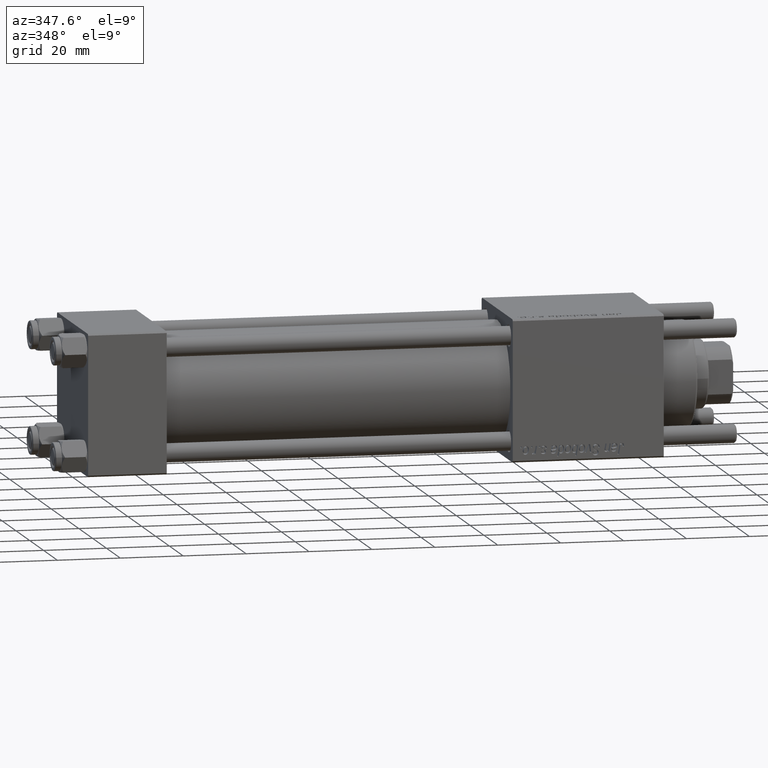
[diagram: clean part render]
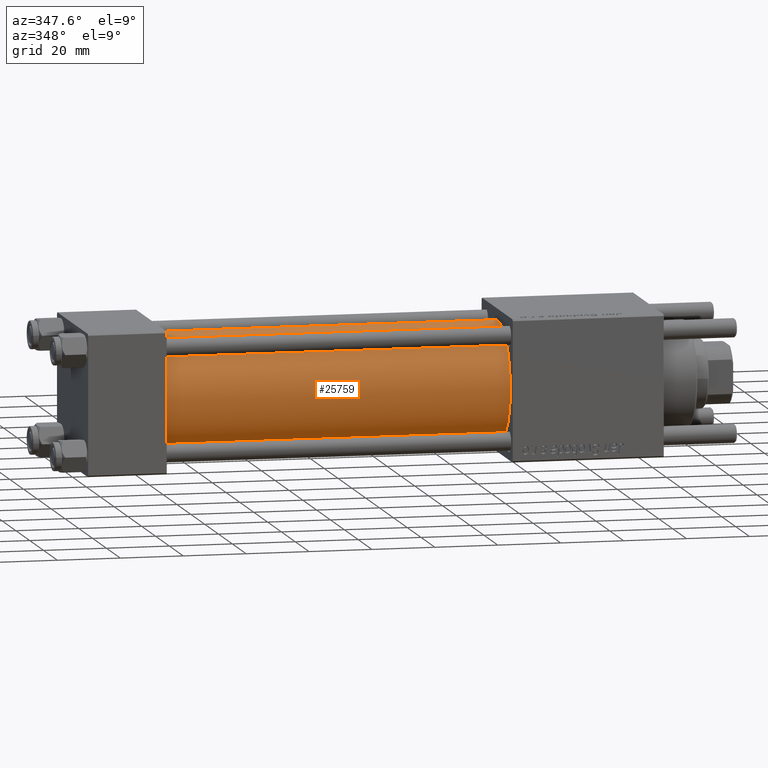
[diagram: same view with one face highlighted and labeled with its STEP entity id]
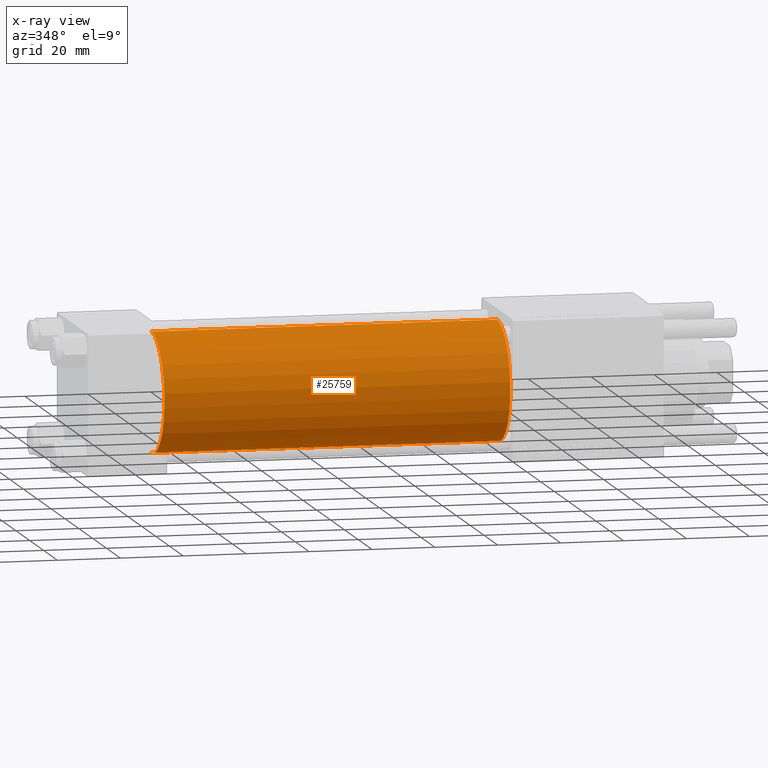
[diagram: x-ray of the same camera — body ghosted, the highlighted face saturated]
A machine part, auxiliary view. The second image highlights one B-rep face of the part: STEP entity #25759.
The next image is the same camera in x-ray: the body ghosted, the highlighted face saturated — about 0% of this face is hidden behind the body in this view.
In plain terms, the highlighted cylindrical surface (partial cylindrical patch) has radius 19 mm, axis along (-1, -0, -0).
Its self-contained STEP definition (entity closure, byte-faithful):
#822 = CARTESIAN_POINT ( 'NONE',  ( 135.0000000000000000, -2.752562955852396712E-16, -19.00000000000000000 ) ) ;
#1036 = ORIENTED_EDGE ( 'NONE', *, *, #4102, .T. ) ;
#3867 = EDGE_CURVE ( 'NONE', #40093, #51610, #55216, .T. ) ;
#4102 = EDGE_CURVE ( 'NONE', #40093, #51019, #4371, .T. ) ;
#4371 = LINE ( 'NONE', #8684, #17672 ) ;
#6924 = CARTESIAN_POINT ( 'NONE',  ( 24.99999999999999289, -2.602085213965210642E-15, 19.00000000000000000 ) ) ;
#7282 = VERTEX_POINT ( 'NONE', #31102 ) ;
#7608 = CIRCLE ( 'NONE', #13140, 19.00000000000000000 ) ;
#8684 = CARTESIAN_POINT ( 'NONE',  ( 135.0000000000000000, -2.602085213965210642E-15, 19.00000000000000000 ) ) ;
#11382 = CARTESIAN_POINT ( 'NONE',  ( 135.0000000000000000, -2.602085213965210642E-15, 0.000000000000000000 ) ) ;
#12908 = DIRECTION ( 'NONE',  ( 0.000000000000000000, 0.000000000000000000, 1.000000000000000000 ) ) ;
#13140 = AXIS2_PLACEMENT_3D ( 'NONE', #46466, #51330, #33530 ) ;
#15134 = DIRECTION ( 'NONE',  ( 0.000000000000000000, 0.000000000000000000, -1.000000000000000000 ) ) ;
#16260 = EDGE_CURVE ( 'NONE', #51610, #7282, #40433, .T. ) ;
#17495 = FACE_OUTER_BOUND ( 'NONE', #36775, .T. ) ;
#17672 = VECTOR ( 'NONE', #21912, 1000.000000000000000 ) ;
#17910 = VECTOR ( 'NONE', #18356, 1000.000000000000000 ) ;
#18356 = DIRECTION ( 'NONE',  ( -1.000000000000000000, -0.000000000000000000, -0.000000000000000000 ) ) ;
#19798 = CARTESIAN_POINT ( 'NONE',  ( 135.0000000000000000, -2.602085213965210642E-15, 19.00000000000000000 ) ) ;
#21912 = DIRECTION ( 'NONE',  ( -1.000000000000000000, -0.000000000000000000, -0.000000000000000000 ) ) ;
#25759 = ADVANCED_FACE ( 'NONE', ( #17495 ), #39023, .T. ) ;
#28598 = DIRECTION ( 'NONE',  ( 1.000000000000000000, 0.000000000000000000, 0.000000000000000000 ) ) ;
#29351 = EDGE_CURVE ( 'NONE', #51019, #7282, #7608, .T. ) ;
#31102 = CARTESIAN_POINT ( 'NONE',  ( 24.99999999999999289, -2.752562955852396712E-16, -19.00000000000000000 ) ) ;
#32288 = AXIS2_PLACEMENT_3D ( 'NONE', #56547, #52244, #12908 ) ;
#33530 = DIRECTION ( 'NONE',  ( 0.000000000000000000, 0.000000000000000000, 1.000000000000000000 ) ) ;
#36775 = EDGE_LOOP ( 'NONE', ( #45827, #42052, #1036, #52351 ) ) ;
#39023 = CYLINDRICAL_SURFACE ( 'NONE', #32288, 19.00000000000000000 ) ;
#39631 = AXIS2_PLACEMENT_3D ( 'NONE', #11382, #28598, #15134 ) ;
#40093 = VERTEX_POINT ( 'NONE', #19798 ) ;
#40433 = LINE ( 'NONE', #822, #17910 ) ;
#42052 = ORIENTED_EDGE ( 'NONE', *, *, #3867, .F. ) ;
#43249 = CARTESIAN_POINT ( 'NONE',  ( 135.0000000000000000, -2.752562955852396712E-16, -19.00000000000000000 ) ) ;
#45827 = ORIENTED_EDGE ( 'NONE', *, *, #16260, .F. ) ;
#46466 = CARTESIAN_POINT ( 'NONE',  ( 24.99999999999999289, -2.602085213965210642E-15, 0.000000000000000000 ) ) ;
#51019 = VERTEX_POINT ( 'NONE', #6924 ) ;
#51330 = DIRECTION ( 'NONE',  ( 1.000000000000000000, -0.000000000000000000, 0.000000000000000000 ) ) ;
#51610 = VERTEX_POINT ( 'NONE', #43249 ) ;
#52244 = DIRECTION ( 'NONE',  ( -1.000000000000000000, -0.000000000000000000, -0.000000000000000000 ) ) ;
#52351 = ORIENTED_EDGE ( 'NONE', *, *, #29351, .T. ) ;
#55216 = CIRCLE ( 'NONE', #39631, 19.00000000000000000 ) ;
#56547 = CARTESIAN_POINT ( 'NONE',  ( 135.0000000000000000, -2.602085213965210642E-15, 0.000000000000000000 ) ) ;